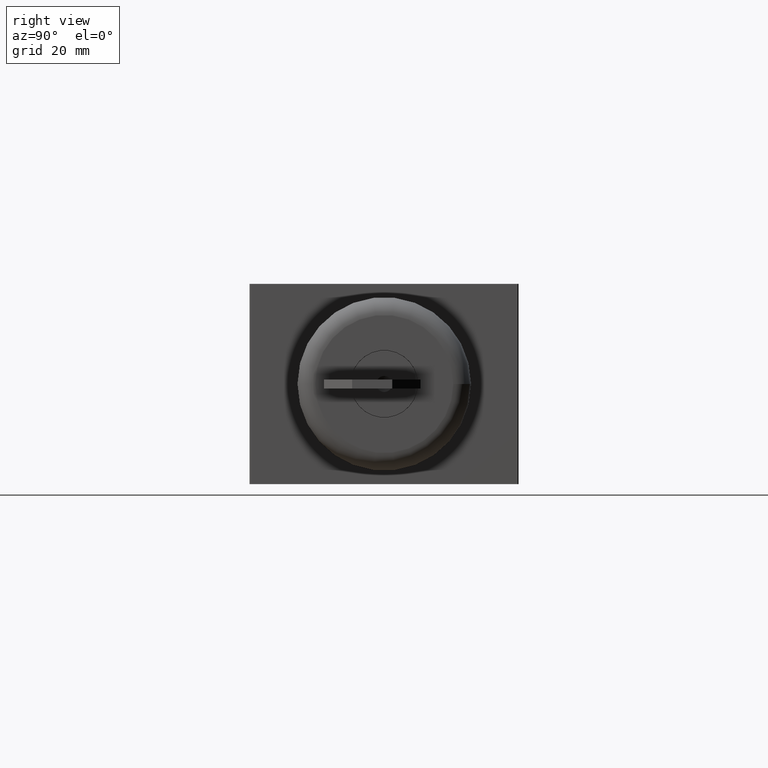
[diagram: clean part render]
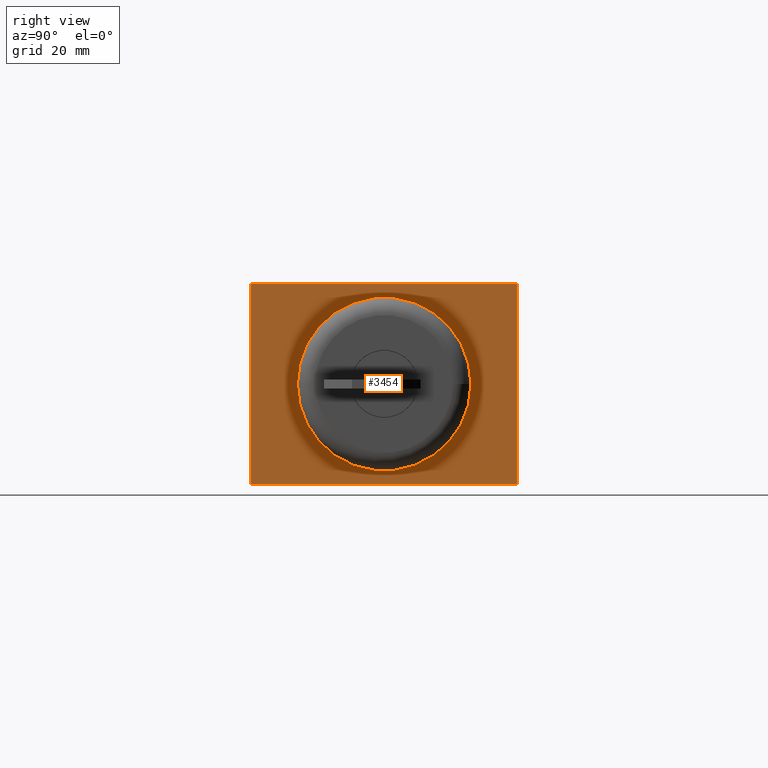
[diagram: same view with one face highlighted and labeled with its STEP entity id]
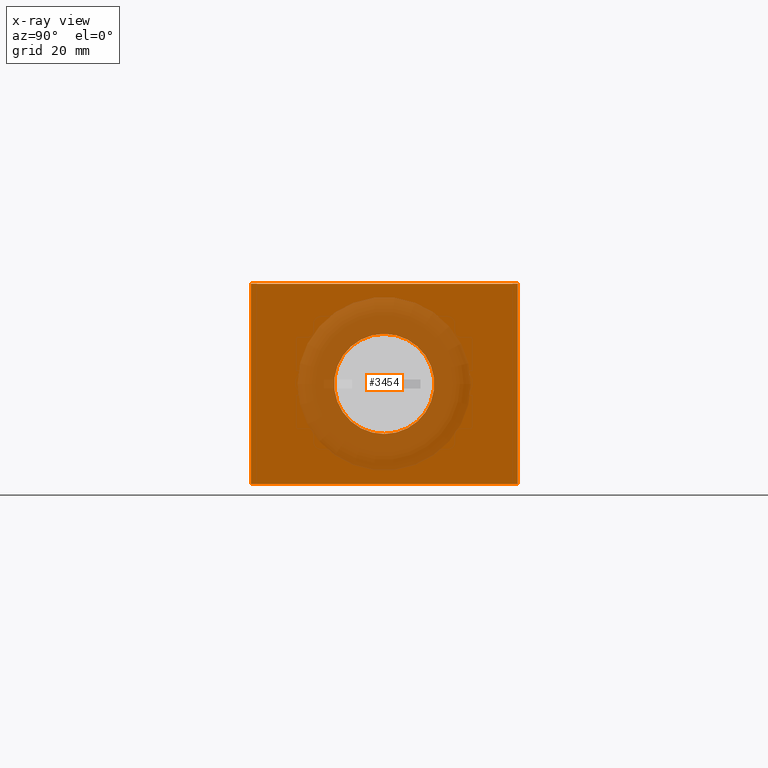
[diagram: x-ray of the same camera — body ghosted, the highlighted face saturated]
A machine part, right view. The second image highlights one B-rep face of the part: STEP entity #3454.
The next image is the same camera in x-ray: the body ghosted, the highlighted face saturated — about 34% of this face is hidden behind the body in this view.
In plain terms, the highlighted planar face has unit normal (1, 0, 0).
Its self-contained STEP definition (entity closure, byte-faithful):
#3359=CARTESIAN_POINT('',(-12.704183619849175,-32.725398273954283,11.250000000000000));
#3360=VERTEX_POINT('',#3359);
#3361=CARTESIAN_POINT('',(-12.704183619849179,-32.725398273954283,22.500000000000000));
#3362=DIRECTION('',(-1.0,0.0,0.0));
#3363=DIRECTION('',(0.0,0.0,1.0));
#3364=AXIS2_PLACEMENT_3D('',#3361,#3362,#3363);
#3365=CIRCLE('',#3364,11.250000000000000);
#3366=EDGE_CURVE('',#3360,#3360,#3365,.T.);
#3384=CARTESIAN_POINT('',(-12.704183619849179,-2.725398273954287,45.0));
#3385=VERTEX_POINT('',#3384);
#3394=CARTESIAN_POINT('',(-12.704183619849179,-2.725398273954287,0.0));
#3395=VERTEX_POINT('',#3394);
#3396=CARTESIAN_POINT('',(-12.704183619849179,-2.725398273954287,0.0));
#3397=DIRECTION('',(0.0,0.0,1.0));
#3398=VECTOR('',#3397,45.0);
#3399=LINE('',#3396,#3398);
#3400=EDGE_CURVE('',#3395,#3385,#3399,.T.);
#3421=CARTESIAN_POINT('',(-12.704183619849179,-2.725398273954287,0.0));
#3422=DIRECTION('',(1.0,0.0,0.0));
#3423=DIRECTION('',(0.0,0.0,-1.0));
#3424=AXIS2_PLACEMENT_3D('',#3421,#3422,#3423);
#3425=PLANE('',#3424);
#3426=CARTESIAN_POINT('',(-12.704183619849172,-62.725398273954283,45.0));
#3427=VERTEX_POINT('',#3426);
#3428=CARTESIAN_POINT('',(-12.704183619849179,-2.725398273954287,45.0));
#3429=DIRECTION('',(0.0,-1.0,0.0));
#3430=VECTOR('',#3429,60.0);
#3431=LINE('',#3428,#3430);
#3432=EDGE_CURVE('',#3385,#3427,#3431,.T.);
#3433=ORIENTED_EDGE('',*,*,#3432,.T.);
#3434=CARTESIAN_POINT('',(-12.704183619849172,-62.725398273954283,0.0));
#3435=VERTEX_POINT('',#3434);
#3436=CARTESIAN_POINT('',(-12.704183619849172,-62.725398273954283,0.0));
#3437=DIRECTION('',(0.0,0.0,1.0));
#3438=VECTOR('',#3437,45.0);
#3439=LINE('',#3436,#3438);
#3440=EDGE_CURVE('',#3435,#3427,#3439,.T.);
#3441=ORIENTED_EDGE('',*,*,#3440,.F.);
#3442=CARTESIAN_POINT('',(-12.704183619849172,-62.725398273954283,0.0));
#3443=DIRECTION('',(0.0,1.0,0.0));
#3444=VECTOR('',#3443,60.0);
#3445=LINE('',#3442,#3444);
#3446=EDGE_CURVE('',#3435,#3395,#3445,.T.);
#3447=ORIENTED_EDGE('',*,*,#3446,.T.);
#3448=ORIENTED_EDGE('',*,*,#3400,.T.);
#3449=EDGE_LOOP('',(#3433,#3441,#3447,#3448));
#3450=FACE_OUTER_BOUND('',#3449,.T.);
#3451=ORIENTED_EDGE('',*,*,#3366,.T.);
#3452=EDGE_LOOP('',(#3451));
#3453=FACE_BOUND('',#3452,.T.);
#3454=ADVANCED_FACE('',(#3450,#3453),#3425,.T.);